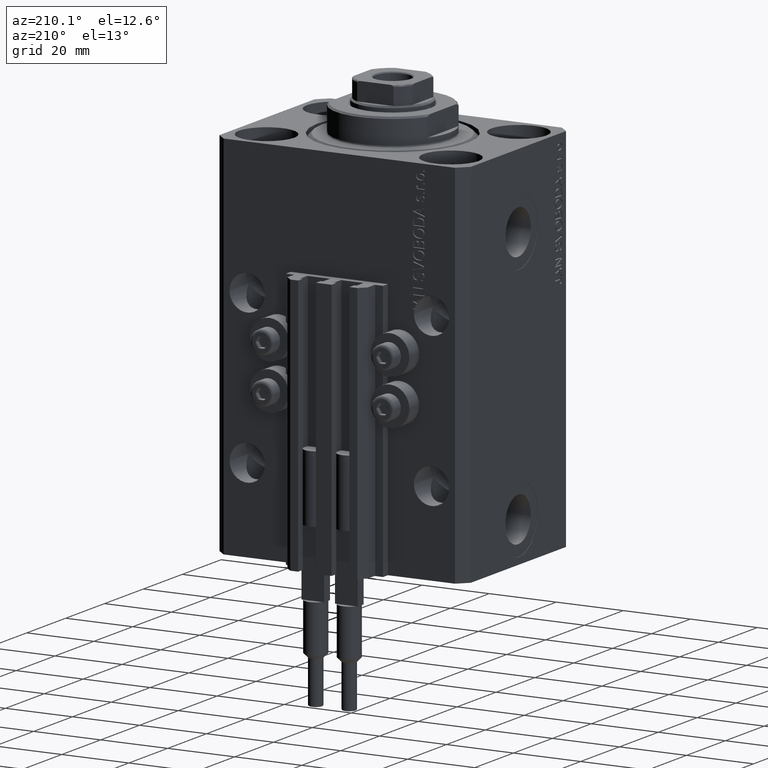
[diagram: clean part render]
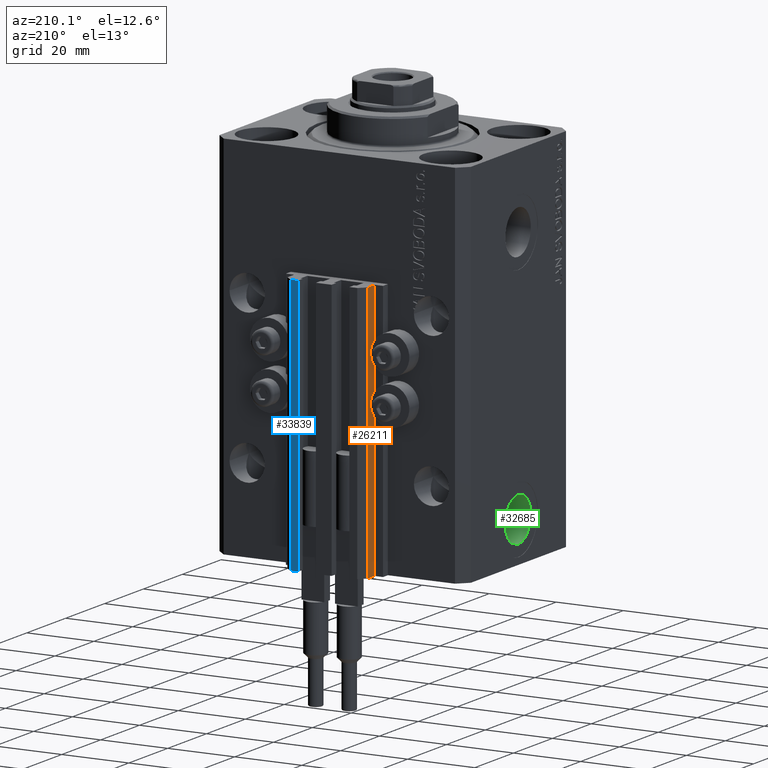
[diagram: same view with three faces highlighted in distinct colors, each labeled with its STEP entity id]
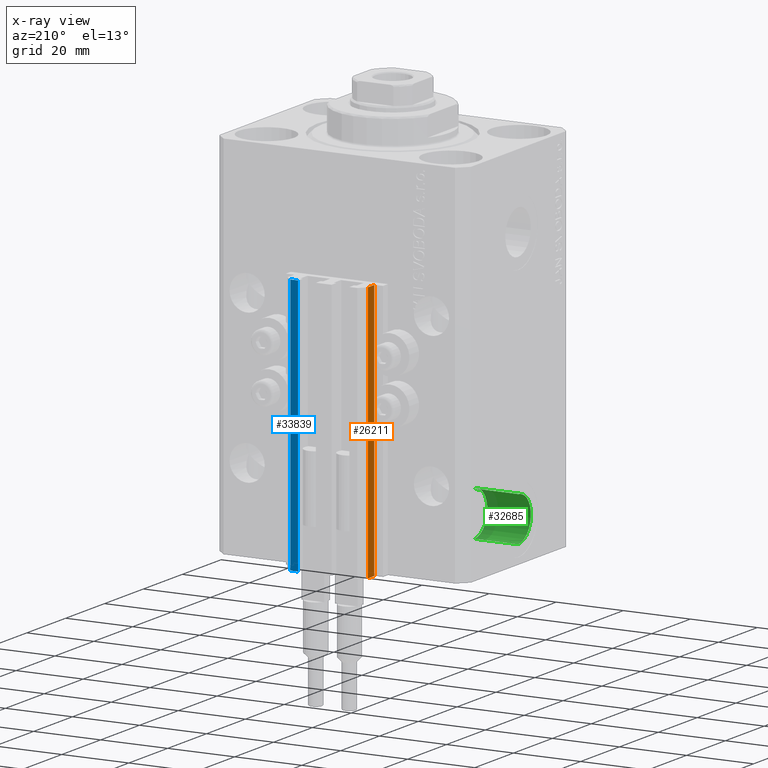
[diagram: x-ray of the same camera — body ghosted, the three highlighted faces saturated]
A machine part, auxiliary view with three faces highlighted in distinct colors.
The next image is the same camera in x-ray (body ghosted, the three faces saturated) — at least one of them is partly hidden behind the body in this view.
Their STEP definitions:

[orange] entity #26211 — the highlighted planar face has unit normal (-1, 0, 0).
#5 = CARTESIAN_POINT ( 'NONE',  ( -12.00000000000000000, 33.49999999999998579, -33.00000000000000000 ) ) ;
#1884 = EDGE_CURVE ( 'NONE', #31547, #27164, #12078, .T. ) ;
#3570 = CARTESIAN_POINT ( 'NONE',  ( -12.00000000000000000, 33.49999999999998579, -110.0000000000000000 ) ) ;
#4392 = VECTOR ( 'NONE', #26942, 1000.000000000000000 ) ;
#4904 = ORIENTED_EDGE ( 'NONE', *, *, #1884, .T. ) ;
#5087 = AXIS2_PLACEMENT_3D ( 'NONE', #16995, #39418, #38477 ) ;
#7717 = CARTESIAN_POINT ( 'NONE',  ( -12.00000000000000000, 30.19999999999999218, -33.00000000000000000 ) ) ;
#10861 = CARTESIAN_POINT ( 'NONE',  ( -12.00000000000000000, 33.49999999999998579, -33.00000000000000000 ) ) ;
#12078 = LINE ( 'NONE', #3570, #4392 ) ;
#12127 = CARTESIAN_POINT ( 'NONE',  ( -12.00000000000000000, 30.19999999999999218, -110.0000000000000000 ) ) ;
#15594 = EDGE_CURVE ( 'NONE', #31547, #32640, #45661, .T. ) ;
#16995 = CARTESIAN_POINT ( 'NONE',  ( -12.00000000000000000, 33.49999999999998579, -110.0000000000000000 ) ) ;
#17007 = CARTESIAN_POINT ( 'NONE',  ( -12.00000000000000000, 33.49999999999998579, -110.0000000000000000 ) ) ;
#17135 = LINE ( 'NONE', #12127, #21817 ) ;
#17981 = CARTESIAN_POINT ( 'NONE',  ( -12.00000000000000000, 30.19999999999999218, -110.0000000000000000 ) ) ;
#19626 = CARTESIAN_POINT ( 'NONE',  ( -12.00000000000000000, 33.49999999999998579, -110.0000000000000000 ) ) ;
#19958 = FACE_OUTER_BOUND ( 'NONE', #35573, .T. ) ;
#21203 = LINE ( 'NONE', #5, #25836 ) ;
#21817 = VECTOR ( 'NONE', #34778, 1000.000000000000000 ) ;
#24078 = PLANE ( 'NONE',  #5087 ) ;
#25836 = VECTOR ( 'NONE', #36564, 1000.000000000000000 ) ;
#26211 = ADVANCED_FACE ( 'NONE', ( #19958 ), #24078, .T. ) ;
#26942 = DIRECTION ( 'NONE',  ( 0.000000000000000000, -1.000000000000000000, 0.000000000000000000 ) ) ;
#27164 = VERTEX_POINT ( 'NONE', #17981 ) ;
#27576 = VERTEX_POINT ( 'NONE', #7717 ) ;
#28744 = ORIENTED_EDGE ( 'NONE', *, *, #41295, .T. ) ;
#31547 = VERTEX_POINT ( 'NONE', #17007 ) ;
#32640 = VERTEX_POINT ( 'NONE', #10861 ) ;
#34778 = DIRECTION ( 'NONE',  ( 0.000000000000000000, 0.000000000000000000, 1.000000000000000000 ) ) ;
#35573 = EDGE_LOOP ( 'NONE', ( #40132, #38504, #4904, #28744 ) ) ;
#35834 = VECTOR ( 'NONE', #45425, 1000.000000000000000 ) ;
#36564 = DIRECTION ( 'NONE',  ( 0.000000000000000000, -1.000000000000000000, 0.000000000000000000 ) ) ;
#38477 = DIRECTION ( 'NONE',  ( 0.000000000000000000, 0.000000000000000000, 1.000000000000000000 ) ) ;
#38504 = ORIENTED_EDGE ( 'NONE', *, *, #15594, .F. ) ;
#39418 = DIRECTION ( 'NONE',  ( -1.000000000000000000, 0.000000000000000000, 0.000000000000000000 ) ) ;
#40132 = ORIENTED_EDGE ( 'NONE', *, *, #44371, .F. ) ;
#41295 = EDGE_CURVE ( 'NONE', #27164, #27576, #17135, .T. ) ;
#44371 = EDGE_CURVE ( 'NONE', #32640, #27576, #21203, .T. ) ;
#45425 = DIRECTION ( 'NONE',  ( 0.000000000000000000, 0.000000000000000000, 1.000000000000000000 ) ) ;
#45661 = LINE ( 'NONE', #19626, #35834 ) ;

[blue] entity #33839 — the highlighted planar face has unit normal (0, 1, 0).
#825 = VERTEX_POINT ( 'NONE', #46439 ) ;
#1421 = EDGE_CURVE ( 'NONE', #27423, #32983, #12727, .T. ) ;
#5527 = EDGE_LOOP ( 'NONE', ( #22415, #27376, #39553, #43066 ) ) ;
#5996 = EDGE_CURVE ( 'NONE', #31156, #32983, #40179, .T. ) ;
#9426 = CARTESIAN_POINT ( 'NONE',  ( 9.999999999999998224, 35.50000000000001421, -33.00000000000000000 ) ) ;
#10553 = LINE ( 'NONE', #28829, #17912 ) ;
#11600 = DIRECTION ( 'NONE',  ( 0.000000000000000000, 0.000000000000000000, 1.000000000000000000 ) ) ;
#12163 = VECTOR ( 'NONE', #31013, 1000.000000000000000 ) ;
#12727 = LINE ( 'NONE', #34440, #12163 ) ;
#17912 = VECTOR ( 'NONE', #43421, 1000.000000000000000 ) ;
#18409 = PLANE ( 'NONE',  #20134 ) ;
#18827 = EDGE_CURVE ( 'NONE', #825, #31156, #10553, .T. ) ;
#20134 = AXIS2_PLACEMENT_3D ( 'NONE', #44472, #23025, #11600 ) ;
#20691 = VECTOR ( 'NONE', #47487, 1000.000000000000000 ) ;
#20798 = EDGE_CURVE ( 'NONE', #825, #27423, #25802, .T. ) ;
#21868 = VECTOR ( 'NONE', #23106, 1000.000000000000000 ) ;
#22415 = ORIENTED_EDGE ( 'NONE', *, *, #1421, .F. ) ;
#23025 = DIRECTION ( 'NONE',  ( 0.000000000000000000, 1.000000000000000000, -0.000000000000000000 ) ) ;
#23106 = DIRECTION ( 'NONE',  ( 0.000000000000000000, 0.000000000000000000, 1.000000000000000000 ) ) ;
#25802 = LINE ( 'NONE', #42552, #21868 ) ;
#27376 = ORIENTED_EDGE ( 'NONE', *, *, #20798, .F. ) ;
#27423 = VERTEX_POINT ( 'NONE', #9426 ) ;
#28029 = CARTESIAN_POINT ( 'NONE',  ( 7.649999999999998579, 35.50000000000001421, -110.0000000000000000 ) ) ;
#28829 = CARTESIAN_POINT ( 'NONE',  ( 9.999999999999998224, 35.50000000000001421, -110.0000000000000000 ) ) ;
#31013 = DIRECTION ( 'NONE',  ( -1.000000000000000000, 0.000000000000000000, 0.000000000000000000 ) ) ;
#31156 = VERTEX_POINT ( 'NONE', #32299 ) ;
#32299 = CARTESIAN_POINT ( 'NONE',  ( 7.649999999999998579, 35.50000000000001421, -110.0000000000000000 ) ) ;
#32983 = VERTEX_POINT ( 'NONE', #44883 ) ;
#33839 = ADVANCED_FACE ( 'NONE', ( #36940 ), #18409, .T. ) ;
#34440 = CARTESIAN_POINT ( 'NONE',  ( 9.999999999999998224, 35.50000000000001421, -33.00000000000000000 ) ) ;
#36940 = FACE_OUTER_BOUND ( 'NONE', #5527, .T. ) ;
#39553 = ORIENTED_EDGE ( 'NONE', *, *, #18827, .T. ) ;
#40179 = LINE ( 'NONE', #28029, #20691 ) ;
#42552 = CARTESIAN_POINT ( 'NONE',  ( 9.999999999999998224, 35.50000000000001421, -110.0000000000000000 ) ) ;
#43066 = ORIENTED_EDGE ( 'NONE', *, *, #5996, .T. ) ;
#43421 = DIRECTION ( 'NONE',  ( -1.000000000000000000, 0.000000000000000000, 0.000000000000000000 ) ) ;
#44472 = CARTESIAN_POINT ( 'NONE',  ( 9.999999999999998224, 35.50000000000001421, -110.0000000000000000 ) ) ;
#44883 = CARTESIAN_POINT ( 'NONE',  ( 7.649999999999998579, 35.50000000000001421, -33.00000000000000000 ) ) ;
#46439 = CARTESIAN_POINT ( 'NONE',  ( 9.999999999999998224, 35.50000000000001421, -110.0000000000000000 ) ) ;
#47487 = DIRECTION ( 'NONE',  ( 0.000000000000000000, 0.000000000000000000, 1.000000000000000000 ) ) ;

[green] entity #32685 — the highlighted cylindrical surface (edge-blend (fillet) strip) has radius 6.58 mm, axis along (-1, -0, -0).
#1085 = FACE_OUTER_BOUND ( 'NONE', #39143, .T. ) ;
#1485 = DIRECTION ( 'NONE',  ( -1.000000000000000000, 0.000000000000000000, 0.000000000000000000 ) ) ;
#2347 = AXIS2_PLACEMENT_3D ( 'NONE', #20240, #1485, #8576 ) ;
#3916 = CARTESIAN_POINT ( 'NONE',  ( -37.39999999999999147, -1.119572103780510441E-14, -104.5800000000000125 ) ) ;
#5295 = VECTOR ( 'NONE', #15768, 1000.000000000000000 ) ;
#6845 = VERTEX_POINT ( 'NONE', #40170 ) ;
#7752 = EDGE_CURVE ( 'NONE', #28274, #6845, #25472, .T. ) ;
#8576 = DIRECTION ( 'NONE',  ( 0.000000000000000000, 0.000000000000000000, 1.000000000000000000 ) ) ;
#9184 = AXIS2_PLACEMENT_3D ( 'NONE', #19615, #15929, #41533 ) ;
#10723 = DIRECTION ( 'NONE',  ( 0.000000000000000000, 0.000000000000000000, 1.000000000000000000 ) ) ;
#13146 = VERTEX_POINT ( 'NONE', #38109 ) ;
#15472 = VECTOR ( 'NONE', #37055, 1000.000000000000000 ) ;
#15768 = DIRECTION ( 'NONE',  ( -1.000000000000000000, -0.000000000000000000, -0.000000000000000000 ) ) ;
#15929 = DIRECTION ( 'NONE',  ( -1.000000000000000000, -0.000000000000000000, -0.000000000000000000 ) ) ;
#18020 = CARTESIAN_POINT ( 'NONE',  ( -24.39999999999999147, -1.200153863164406187E-14, -98.00000000000000000 ) ) ;
#19068 = ORIENTED_EDGE ( 'NONE', *, *, #37109, .T. ) ;
#19615 = CARTESIAN_POINT ( 'NONE',  ( -24.39999999999999147, -1.200153863164406187E-14, -98.00000000000000000 ) ) ;
#20240 = CARTESIAN_POINT ( 'NONE',  ( -37.39999999999999147, -1.200153863164406187E-14, -98.00000000000000000 ) ) ;
#25472 = CIRCLE ( 'NONE', #45667, 6.580000000000002736 ) ;
#25728 = ORIENTED_EDGE ( 'NONE', *, *, #34044, .F. ) ;
#28274 = VERTEX_POINT ( 'NONE', #43079 ) ;
#30645 = CARTESIAN_POINT ( 'NONE',  ( -24.39999999999999147, -1.119572103780510441E-14, -104.5800000000000125 ) ) ;
#30889 = EDGE_CURVE ( 'NONE', #28274, #33296, #41597, .T. ) ;
#32685 = ADVANCED_FACE ( 'NONE', ( #1085 ), #42239, .F. ) ;
#32895 = DIRECTION ( 'NONE',  ( -1.000000000000000000, 0.000000000000000000, 0.000000000000000000 ) ) ;
#33296 = VERTEX_POINT ( 'NONE', #3916 ) ;
#34044 = EDGE_CURVE ( 'NONE', #6845, #13146, #40700, .T. ) ;
#37055 = DIRECTION ( 'NONE',  ( -1.000000000000000000, -0.000000000000000000, -0.000000000000000000 ) ) ;
#37109 = EDGE_CURVE ( 'NONE', #33296, #13146, #47484, .T. ) ;
#38109 = CARTESIAN_POINT ( 'NONE',  ( -37.39999999999999147, -1.200153863164406187E-14, -91.42000000000000171 ) ) ;
#39143 = EDGE_LOOP ( 'NONE', ( #48171, #40829, #19068, #25728 ) ) ;
#40170 = CARTESIAN_POINT ( 'NONE',  ( -24.39999999999999147, -1.200153863164406187E-14, -91.42000000000000171 ) ) ;
#40700 = LINE ( 'NONE', #47755, #15472 ) ;
#40829 = ORIENTED_EDGE ( 'NONE', *, *, #30889, .T. ) ;
#41533 = DIRECTION ( 'NONE',  ( 0.000000000000000000, 0.000000000000000000, 1.000000000000000000 ) ) ;
#41597 = LINE ( 'NONE', #30645, #5295 ) ;
#42239 = CYLINDRICAL_SURFACE ( 'NONE', #9184, 6.580000000000002736 ) ;
#43079 = CARTESIAN_POINT ( 'NONE',  ( -24.39999999999999147, -1.119572103780510441E-14, -104.5800000000000125 ) ) ;
#45667 = AXIS2_PLACEMENT_3D ( 'NONE', #18020, #32895, #10723 ) ;
#47484 = CIRCLE ( 'NONE', #2347, 6.580000000000002736 ) ;
#47755 = CARTESIAN_POINT ( 'NONE',  ( -24.39999999999999147, -1.200153863164406187E-14, -91.42000000000000171 ) ) ;
#48171 = ORIENTED_EDGE ( 'NONE', *, *, #7752, .F. ) ;